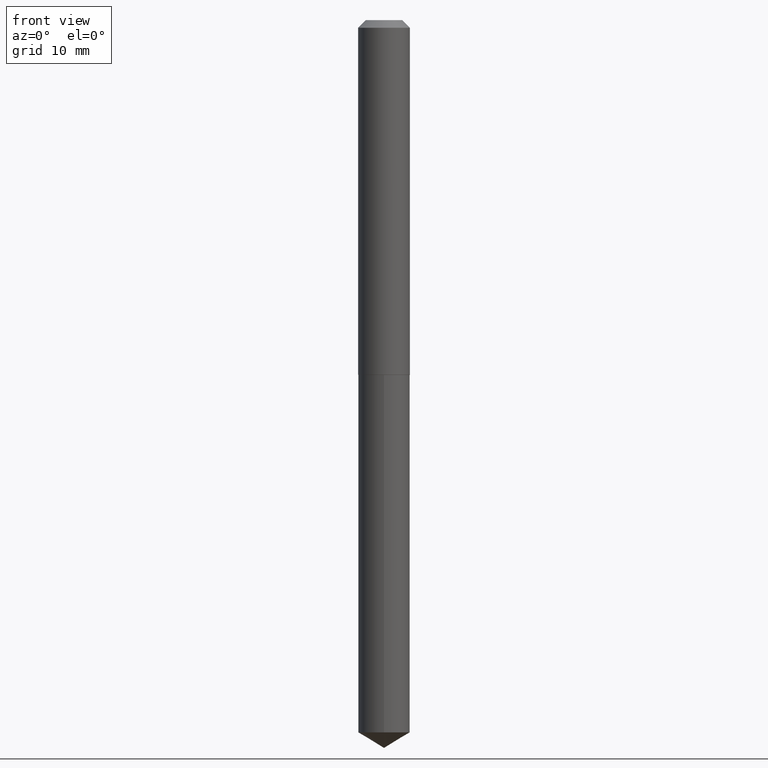
[diagram: clean part render]
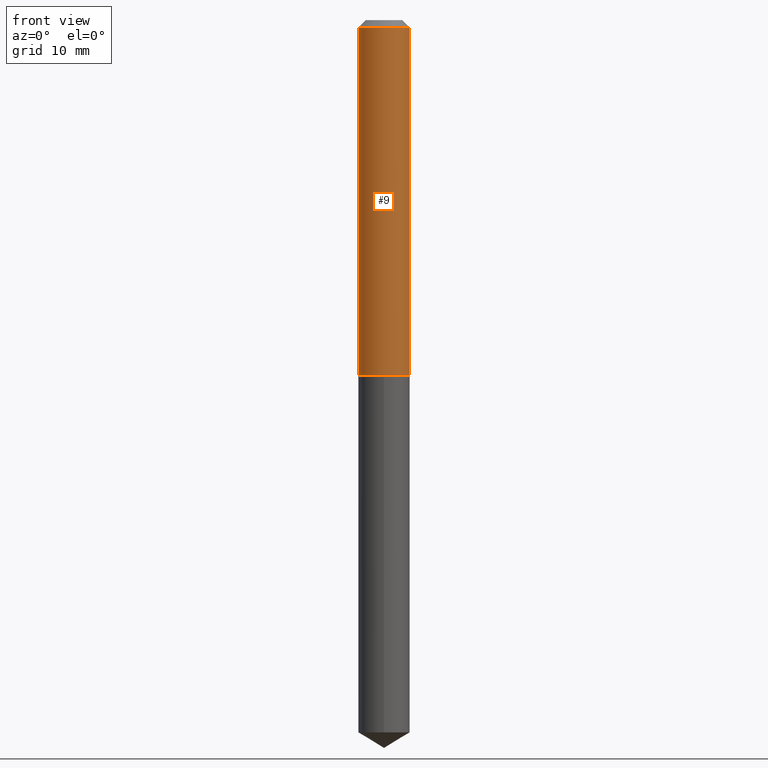
[diagram: same view with one face highlighted and labeled with its STEP entity id]
A machine part, front view. The second image highlights one B-rep face of the part: STEP entity #9.
In plain terms, the highlighted cylindrical surface (edge-blend (fillet) strip) has radius 2.7051 mm, axis along (-0, 0, 1).
Its self-contained STEP definition (entity closure, byte-faithful):
#5 = DIRECTION ( 'NONE',  ( -2.445468806185136877E-29, 3.491481338843145188E-15, 1.000000000000000000 ) ) ;
#9 = ADVANCED_FACE ( 'NONE', ( #110 ), #361, .T. ) ;
#21 = EDGE_CURVE ( 'NONE', #22, #44, #49, .T. ) ;
#22 = VERTEX_POINT ( 'NONE', #386 ) ;
#29 = DIRECTION ( 'NONE',  ( 1.000000000000000000, -6.982962677686261977E-15, 0.000000000000000000 ) ) ;
#32 = CARTESIAN_POINT ( 'NONE',  ( -0.1065000000000001779, -4.349563444473592911E-15, -1.462500000000000355 ) ) ;
#38 = AXIS2_PLACEMENT_3D ( 'NONE', #170, #256, #235 ) ;
#44 = VERTEX_POINT ( 'NONE', #225 ) ;
#49 = CIRCLE ( 'NONE', #38, 0.1064999999999999974 ) ;
#75 = EDGE_CURVE ( 'NONE', #345, #22, #320, .T. ) ;
#93 = DIRECTION ( 'NONE',  ( -2.445468806185136597E-29, 3.491481338843145583E-15, 1.000000000000000000 ) ) ;
#110 = FACE_OUTER_BOUND ( 'NONE', #231, .T. ) ;
#124 = DIRECTION ( 'NONE',  ( -2.445468806185136877E-29, 3.491481338843145188E-15, 1.000000000000000000 ) ) ;
#138 = VERTEX_POINT ( 'NONE', #307 ) ;
#143 = CARTESIAN_POINT ( 'NONE',  ( 0.000000000000000000, 0.000000000000000000, 0.000000000000000000 ) ) ;
#152 = CARTESIAN_POINT ( 'NONE',  ( 3.576498129045762721E-29, -5.106291458058101465E-15, -1.462500000000000355 ) ) ;
#170 = CARTESIAN_POINT ( 'NONE',  ( 7.642090019328599159E-31, -1.091087918388489774E-16, -0.03125000000000019429 ) ) ;
#200 = ORIENTED_EDGE ( 'NONE', *, *, #273, .T. ) ;
#212 = AXIS2_PLACEMENT_3D ( 'NONE', #143, #323, #261 ) ;
#225 = CARTESIAN_POINT ( 'NONE',  ( 0.1064999999999999974, -8.527943170124363436E-16, -0.03125000000000019429 ) ) ;
#231 = EDGE_LOOP ( 'NONE', ( #381, #200, #340, #352 ) ) ;
#235 = DIRECTION ( 'NONE',  ( 1.000000000000000000, -6.982962677686267499E-15, 0.000000000000000000 ) ) ;
#256 = DIRECTION ( 'NONE',  ( -2.445468806185136597E-29, 3.491481338843145583E-15, 1.000000000000000000 ) ) ;
#261 = DIRECTION ( 'NONE',  ( 1.000000000000000000, -6.982962677686267499E-15, 4.876176775795935232E-29 ) ) ;
#265 = LINE ( 'NONE', #319, #299 ) ;
#273 = EDGE_CURVE ( 'NONE', #345, #138, #312, .T. ) ;
#291 = CARTESIAN_POINT ( 'NONE',  ( -0.1065000000000000807, 7.567280135845072715E-16, -5.238665871121478096E-30 ) ) ;
#299 = VECTOR ( 'NONE', #5, 39.37007874015748143 ) ;
#307 = CARTESIAN_POINT ( 'NONE',  ( 0.1065000000000001779, -5.849976983231689595E-15, -1.462500000000000355 ) ) ;
#312 = CIRCLE ( 'NONE', #330, 0.1065000000000001779 ) ;
#319 = CARTESIAN_POINT ( 'NONE',  ( 0.1065000000000000807, -7.436855251735880318E-16, 5.193128266222675235E-30 ) ) ;
#320 = LINE ( 'NONE', #291, #322 ) ;
#322 = VECTOR ( 'NONE', #124, 39.37007874015748143 ) ;
#323 = DIRECTION ( 'NONE',  ( -2.445468806185136597E-29, 3.491481338843145583E-15, 1.000000000000000000 ) ) ;
#330 = AXIS2_PLACEMENT_3D ( 'NONE', #152, #93, #29 ) ;
#340 = ORIENTED_EDGE ( 'NONE', *, *, #384, .T. ) ;
#345 = VERTEX_POINT ( 'NONE', #32 ) ;
#352 = ORIENTED_EDGE ( 'NONE', *, *, #21, .F. ) ;
#361 = CYLINDRICAL_SURFACE ( 'NONE', #212, 0.1065000000000000807 ) ;
#381 = ORIENTED_EDGE ( 'NONE', *, *, #75, .F. ) ;
#384 = EDGE_CURVE ( 'NONE', #138, #44, #265, .T. ) ;
#386 = CARTESIAN_POINT ( 'NONE',  ( -0.1064999999999999974, -1.850972111363967124E-15, -0.03125000000000019429 ) ) ;